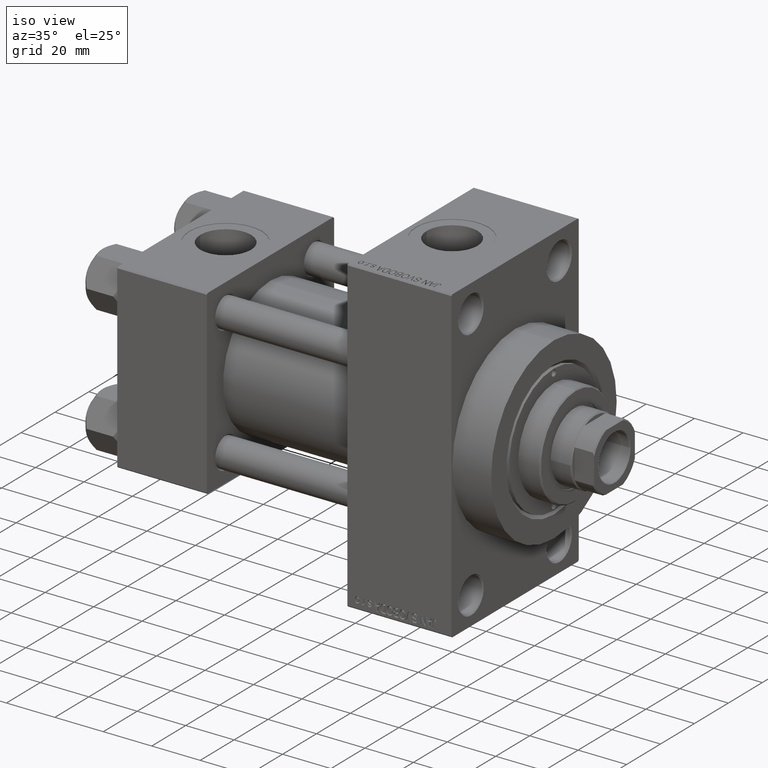
[diagram: clean part render]
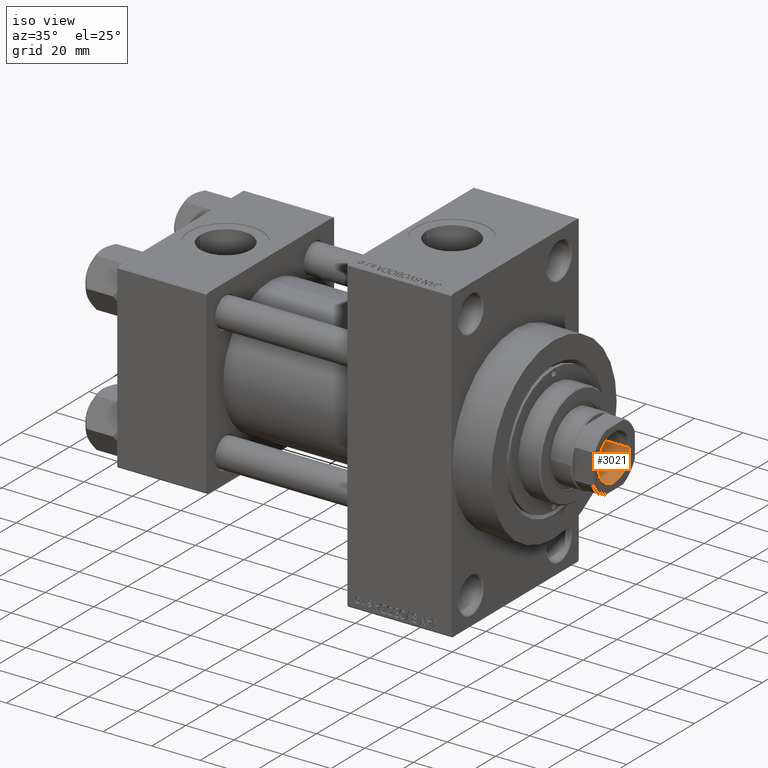
[diagram: same view with one face highlighted and labeled with its STEP entity id]
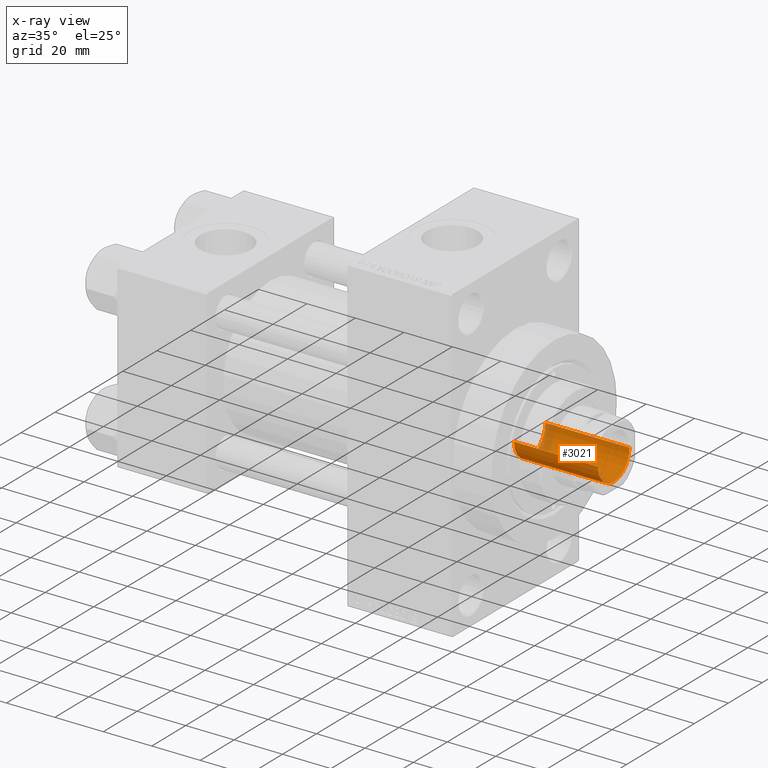
[diagram: x-ray of the same camera — body ghosted, the highlighted face saturated]
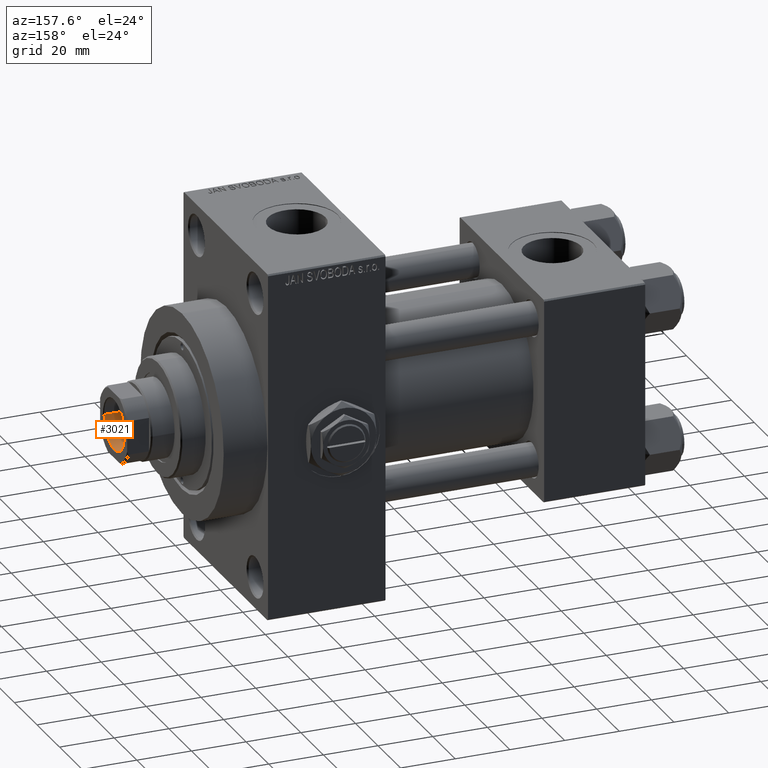
[diagram: same view with one face highlighted and labeled with its STEP entity id]
A machine part, iso view. The second image highlights one B-rep face of the part: STEP entity #3021.
The next image is the same camera in x-ray: the body ghosted, the highlighted face saturated — about 8% of this face is hidden behind the body in this view.
A second angle (auxiliary view) of the same face is appended — the face is thin or edge-on in the first view.
In plain terms, the highlighted cylindrical surface (edge-blend (fillet) strip) has radius 9.25 mm, axis along (1, 0, 0).
Its self-contained STEP definition (entity closure, byte-faithful):
#1172 = EDGE_CURVE ( 'NONE', #8461, #30364, #41252, .T. ) ;
#1638 = AXIS2_PLACEMENT_3D ( 'NONE', #30643, #45816, #15964 ) ;
#3021 = ADVANCED_FACE ( 'NONE', ( #30890 ), #15470, .F. ) ;
#4799 = AXIS2_PLACEMENT_3D ( 'NONE', #7516, #11007, #14978 ) ;
#4934 = CIRCLE ( 'NONE', #32704, 9.249999999999994671 ) ;
#5502 = CARTESIAN_POINT ( 'NONE',  ( 9.249999999999994671, 0.000000000000000000, 141.7000000000000171 ) ) ;
#7516 = CARTESIAN_POINT ( 'NONE',  ( 0.000000000000000000, 0.000000000000000000, 107.0000000000000142 ) ) ;
#7892 = EDGE_CURVE ( 'NONE', #8461, #9952, #14603, .T. ) ;
#8461 = VERTEX_POINT ( 'NONE', #45308 ) ;
#8887 = ORIENTED_EDGE ( 'NONE', *, *, #1172, .F. ) ;
#9341 = EDGE_CURVE ( 'NONE', #9952, #20190, #4934, .T. ) ;
#9952 = VERTEX_POINT ( 'NONE', #5502 ) ;
#10788 = CARTESIAN_POINT ( 'NONE',  ( -9.249999999999994671, 1.132798289211300909E-15, 141.7000000000000171 ) ) ;
#11007 = DIRECTION ( 'NONE',  ( -0.000000000000000000, -0.000000000000000000, 1.000000000000000000 ) ) ;
#11868 = ORIENTED_EDGE ( 'NONE', *, *, #9341, .T. ) ;
#13983 = VECTOR ( 'NONE', #43934, 1000.000000000000000 ) ;
#14354 = CARTESIAN_POINT ( 'NONE',  ( 9.249999999999994671, 0.000000000000000000, 142.0000000000000284 ) ) ;
#14558 = ORIENTED_EDGE ( 'NONE', *, *, #7892, .T. ) ;
#14603 = LINE ( 'NONE', #14354, #22337 ) ;
#14978 = DIRECTION ( 'NONE',  ( 1.000000000000000000, 0.000000000000000000, 0.000000000000000000 ) ) ;
#15470 = CYLINDRICAL_SURFACE ( 'NONE', #1638, 9.249999999999994671 ) ;
#15964 = DIRECTION ( 'NONE',  ( 1.000000000000000000, 0.000000000000000000, 0.000000000000000000 ) ) ;
#19838 = EDGE_CURVE ( 'NONE', #30364, #20190, #29241, .T. ) ;
#20190 = VERTEX_POINT ( 'NONE', #10788 ) ;
#22337 = VECTOR ( 'NONE', #29507, 1000.000000000000000 ) ;
#23968 = DIRECTION ( 'NONE',  ( 1.000000000000000000, 0.000000000000000000, 0.000000000000000000 ) ) ;
#29241 = LINE ( 'NONE', #36734, #13983 ) ;
#29507 = DIRECTION ( 'NONE',  ( -0.000000000000000000, -0.000000000000000000, 1.000000000000000000 ) ) ;
#30364 = VERTEX_POINT ( 'NONE', #39567 ) ;
#30369 = EDGE_LOOP ( 'NONE', ( #38510, #8887, #14558, #11868 ) ) ;
#30643 = CARTESIAN_POINT ( 'NONE',  ( 0.000000000000000000, 0.000000000000000000, 142.0000000000000284 ) ) ;
#30890 = FACE_OUTER_BOUND ( 'NONE', #30369, .T. ) ;
#32704 = AXIS2_PLACEMENT_3D ( 'NONE', #43854, #46849, #23968 ) ;
#36734 = CARTESIAN_POINT ( 'NONE',  ( -9.249999999999994671, 1.132798289211300909E-15, 142.0000000000000284 ) ) ;
#38510 = ORIENTED_EDGE ( 'NONE', *, *, #19838, .F. ) ;
#39567 = CARTESIAN_POINT ( 'NONE',  ( -9.249999999999992895, 1.132798289211300712E-15, 107.0000000000000142 ) ) ;
#41252 = CIRCLE ( 'NONE', #4799, 9.249999999999992895 ) ;
#43854 = CARTESIAN_POINT ( 'NONE',  ( 0.000000000000000000, 0.000000000000000000, 141.7000000000000171 ) ) ;
#43934 = DIRECTION ( 'NONE',  ( -0.000000000000000000, -0.000000000000000000, 1.000000000000000000 ) ) ;
#45308 = CARTESIAN_POINT ( 'NONE',  ( 9.249999999999992895, 0.000000000000000000, 107.0000000000000142 ) ) ;
#45816 = DIRECTION ( 'NONE',  ( -0.000000000000000000, -0.000000000000000000, 1.000000000000000000 ) ) ;
#46849 = DIRECTION ( 'NONE',  ( 0.000000000000000000, 0.000000000000000000, 1.000000000000000000 ) ) ;